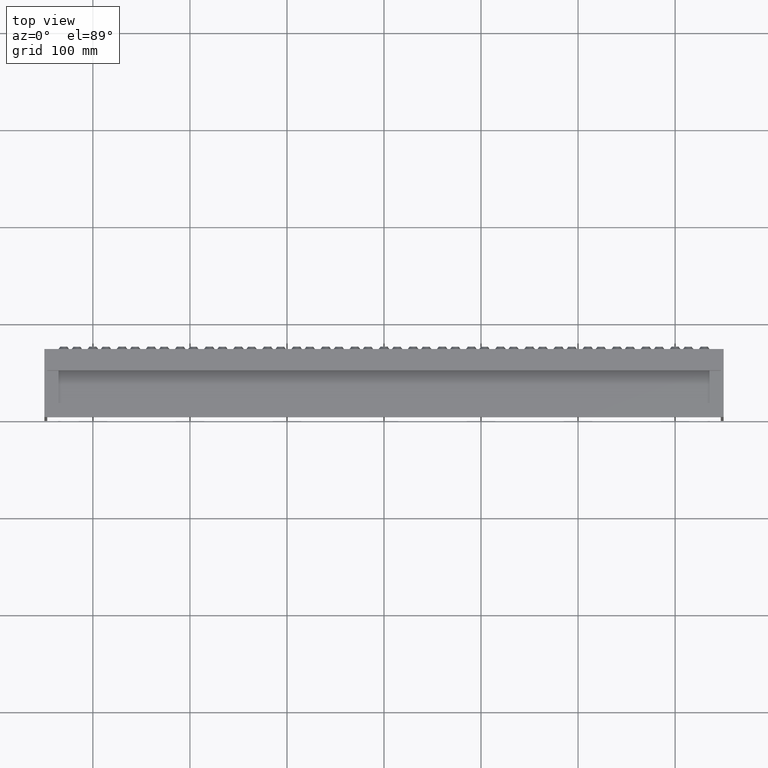
[diagram: clean part render]
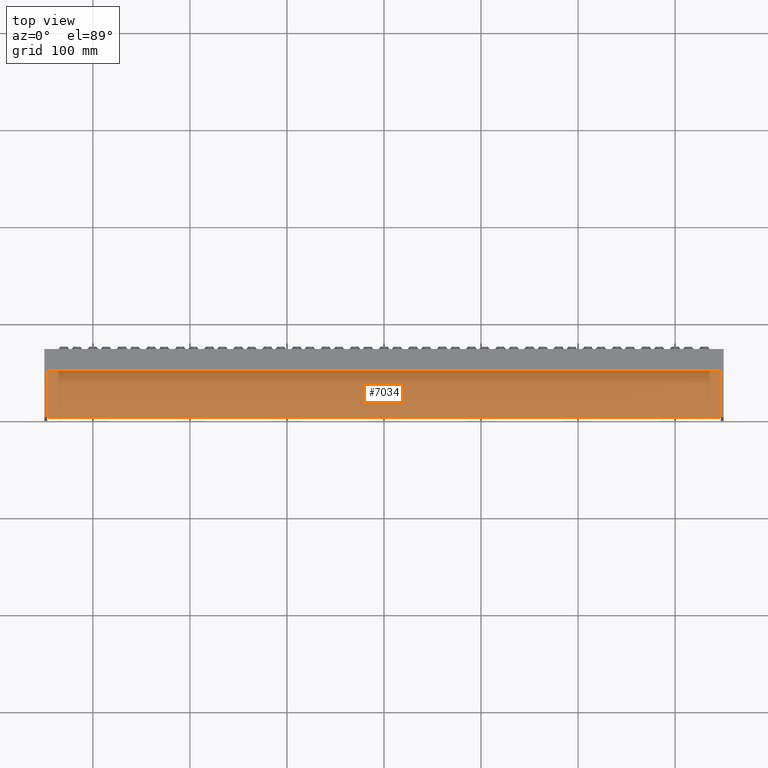
[diagram: same view with one face highlighted and labeled with its STEP entity id]
A machine part, top view. The second image highlights one B-rep face of the part: STEP entity #7034.
In plain terms, the highlighted planar face has unit normal (0, -0, -1).
Its self-contained STEP definition (entity closure, byte-faithful):
#184 = LINE ( 'NONE', #25065, #3382 ) ;
#276 = CARTESIAN_POINT ( 'NONE',  ( 347.0000000000000000, 48.00000000000011400, -13.00000000000000000 ) ) ;
#382 = VECTOR ( 'NONE', #14518, 1000.000000000000000 ) ;
#832 = ORIENTED_EDGE ( 'NONE', *, *, #22623, .T. ) ;
#1181 = CARTESIAN_POINT ( 'NONE',  ( -423.1577310586389400, 5.050613422867832400E-016, -12.99999999999999800 ) ) ;
#1907 = CARTESIAN_POINT ( 'NONE',  ( -347.0000000000000000, 48.00000000000011400, -13.00000000000000000 ) ) ;
#2401 = CARTESIAN_POINT ( 'NONE',  ( -347.0000000000000000, 1.285879139104720800E-013, -13.00000000000001100 ) ) ;
#3382 = VECTOR ( 'NONE', #13521, 1000.000000000000000 ) ;
#4365 = EDGE_CURVE ( 'NONE', #6087, #13254, #14031, .T. ) ;
#4374 = VECTOR ( 'NONE', #21958, 1000.000000000000000 ) ;
#5350 = CARTESIAN_POINT ( 'NONE',  ( 347.0000000000000000, 5.050613422867832400E-016, -12.99999999999999800 ) ) ;
#6087 = VERTEX_POINT ( 'NONE', #2401 ) ;
#7034 = ADVANCED_FACE ( 'NONE', ( #13896 ), #25435, .F. ) ;
#7197 = DIRECTION ( 'NONE',  ( 0.0000000000000000000, 1.000000000000000000, -3.614007241618339900E-017 ) ) ;
#7314 = ORIENTED_EDGE ( 'NONE', *, *, #10198, .T. ) ;
#7453 = EDGE_CURVE ( 'NONE', #13610, #13323, #184, .T. ) ;
#7575 = LINE ( 'NONE', #19535, #4374 ) ;
#10198 = EDGE_CURVE ( 'NONE', #13254, #13323, #14095, .T. ) ;
#11483 = VECTOR ( 'NONE', #23709, 1000.000000000000000 ) ;
#13254 = VERTEX_POINT ( 'NONE', #5350 ) ;
#13280 = CARTESIAN_POINT ( 'NONE',  ( -423.1577310586389400, 48.00000000000011400, -13.00000000000000000 ) ) ;
#13323 = VERTEX_POINT ( 'NONE', #22577 ) ;
#13521 = DIRECTION ( 'NONE',  ( 1.000000000000000000, -0.0000000000000000000, -0.0000000000000000000 ) ) ;
#13610 = VERTEX_POINT ( 'NONE', #1907 ) ;
#13896 = FACE_OUTER_BOUND ( 'NONE', #14131, .T. ) ;
#14031 = LINE ( 'NONE', #1181, #11483 ) ;
#14095 = LINE ( 'NONE', #276, #382 ) ;
#14131 = EDGE_LOOP ( 'NONE', ( #14983, #832, #14208, #7314 ) ) ;
#14208 = ORIENTED_EDGE ( 'NONE', *, *, #4365, .T. ) ;
#14518 = DIRECTION ( 'NONE',  ( -0.0000000000000000000, 1.000000000000000000, -3.614007241618339900E-017 ) ) ;
#14983 = ORIENTED_EDGE ( 'NONE', *, *, #7453, .F. ) ;
#19535 = CARTESIAN_POINT ( 'NONE',  ( -347.0000000000000000, 48.00000000000011400, -13.00000000000000000 ) ) ;
#20657 = AXIS2_PLACEMENT_3D ( 'NONE', #13280, #25597, #7197 ) ;
#21958 = DIRECTION ( 'NONE',  ( 0.0000000000000000000, -1.000000000000000000, 3.614007241618339900E-017 ) ) ;
#22577 = CARTESIAN_POINT ( 'NONE',  ( 347.0000000000000000, 48.00000000000011400, -13.00000000000000000 ) ) ;
#22623 = EDGE_CURVE ( 'NONE', #13610, #6087, #7575, .T. ) ;
#23709 = DIRECTION ( 'NONE',  ( 1.000000000000000000, -0.0000000000000000000, -0.0000000000000000000 ) ) ;
#25065 = CARTESIAN_POINT ( 'NONE',  ( -423.1577310586389400, 48.00000000000011400, -13.00000000000000000 ) ) ;
#25435 = PLANE ( 'NONE',  #20657 ) ;
#25597 = DIRECTION ( 'NONE',  ( 0.0000000000000000000, -3.614007241618339900E-017, -1.000000000000000000 ) ) ;